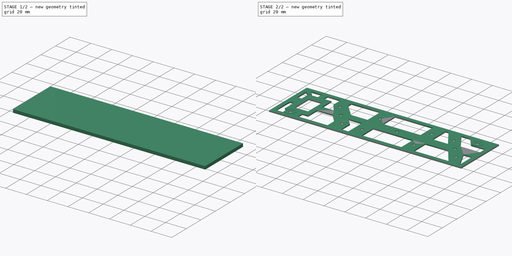
[diagram: build sequence overview — one tinted view per stage of 2, left to right]
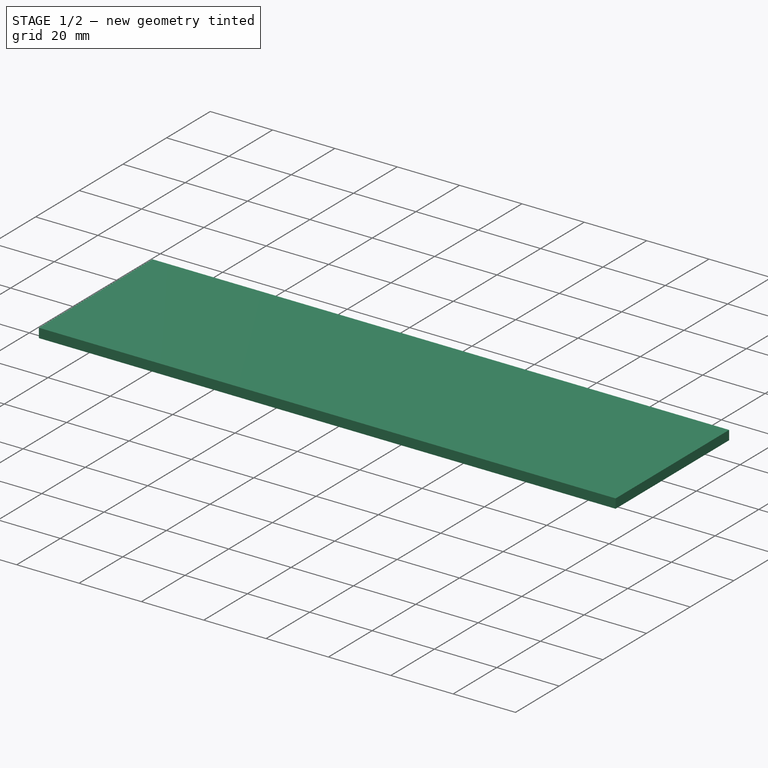
[diagram: stage 1 of 2 — iso view after this stage's code; geometry added in this stage tinted green]
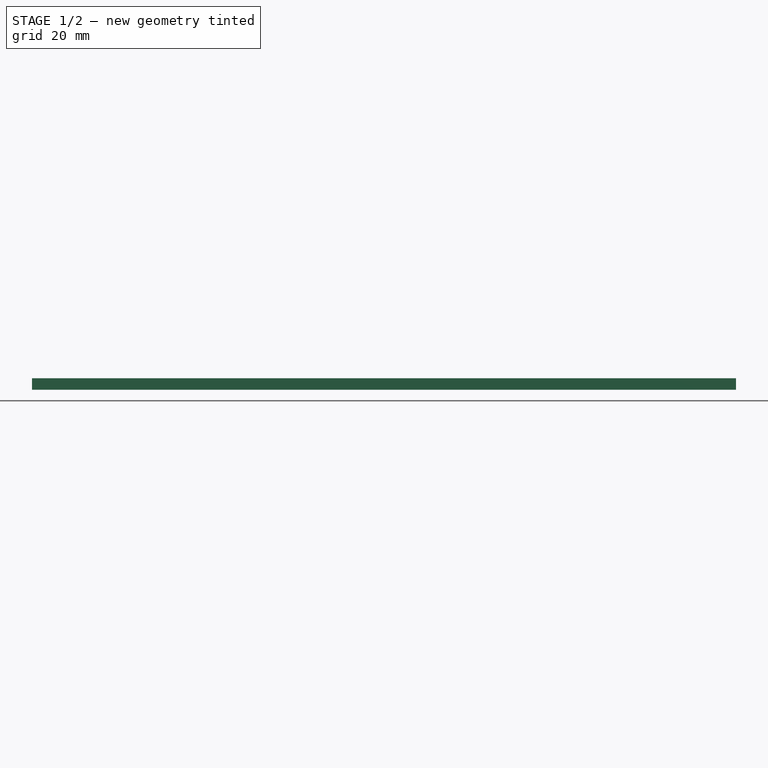
[diagram: stage 1 of 2 — front view after this stage's code; geometry added in this stage tinted green]
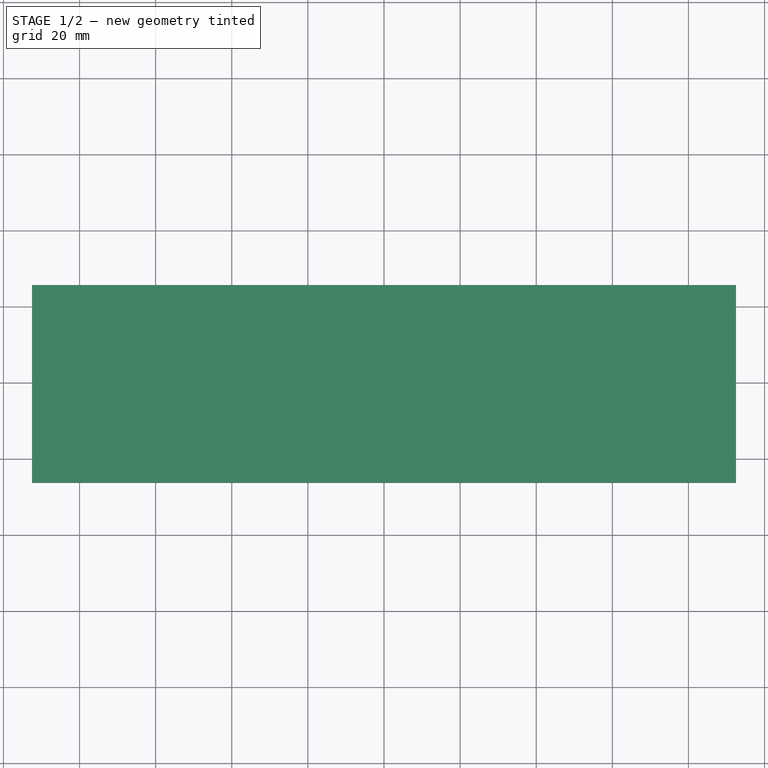
[diagram: stage 1 of 2 — top view after this stage's code; geometry added in this stage tinted green]
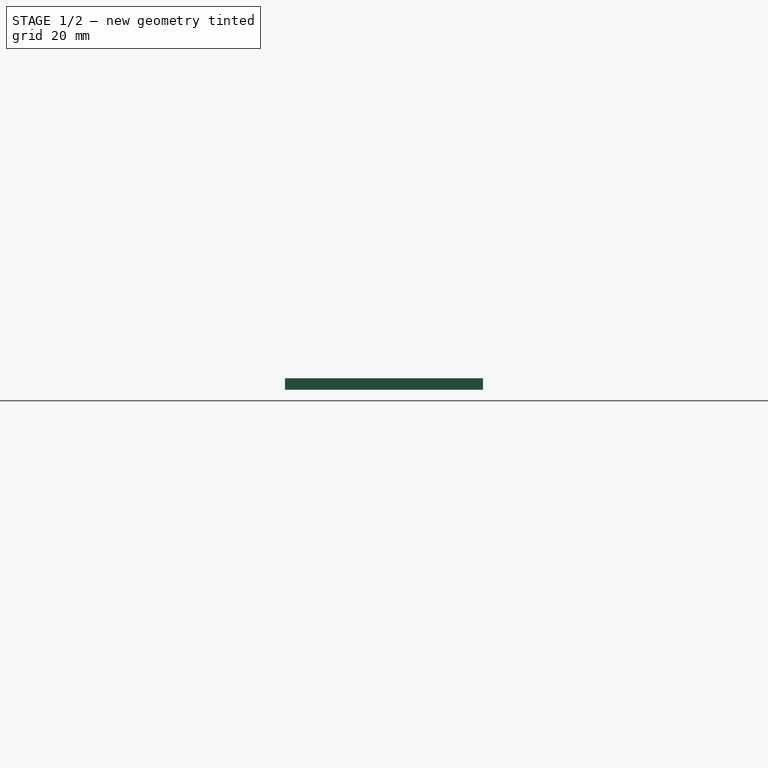
[diagram: stage 1 of 2 — right view after this stage's code; geometry added in this stage tinted green]
FCSTD DOCUMENT  (FreeCAD 0.20R29410 (Git))
Label: tools-case-front-back-panel
License: All rights reserved
LicenseURL: http://en.wikipedia.org/wiki/All_rights_reserved
objects: App::FeaturePython×6, Part::FeaturePython×2, PartDesign::SubShapeBinder×2, Sketcher::SketchObject×2, PartDesign::Pad×2, PartDesign::Body×1
note: 11 computed .brp shape members not serialized (recipe doc carries the construction recipe); baked Part::Feature solids carry a one-line shape summary decoded from their .brp

FEATURE [Part::FeaturePython] b_case_front_panel_001_  label="REF_front"  # a2plus imported part (geometry in sourceFile) (typed FeaturePython)
  Placement = pos=(0,-23.3,-5e-15) rot=(0.57735,0.57735,0.57735;4.18879rad)
  a2p_Version = V0.1
  fixedPosition = true
  objectType = a2pPart
  sourceFile = .\case-front-panel.FCStd
  subassemblyImport = false
  timeLastImport = 1.68112e+09
  updateColors = true
FEATURE [PartDesign::SubShapeBinder] Binder  label="bdFront"
  BindCopyOnChange = 0
  BindMode = 0
  ClaimChildren = false
  Context = -> Body [Binder.]
  Fuse = false
  MakeFace = true
  OffsetFill = false
  OffsetIntersection = false
  OffsetJoinType = 0
  OffsetOpenResult = false
  PartialLoad = false
  Relative = true
  Support = -> [b_case_front_panel_001_[Face4]]
  _Version = 2
FEATURE [Part::FeaturePython] b_case_back_panel_001_  label="REF_back"  # a2plus imported part (geometry in sourceFile) (typed FeaturePython)
  Placement = pos=(5.4849e-12,-0.3,7.77087e-06) rot=(0.57735,0.57735,0.57735;4.18879rad)
  a2p_Version = V0.1
  fixedPosition = false
  objectType = a2pPart
  sourceFile = .\case-back-panel.FCStd
  subassemblyImport = false
  timeLastImport = 1.68113e+09
  updateColors = true
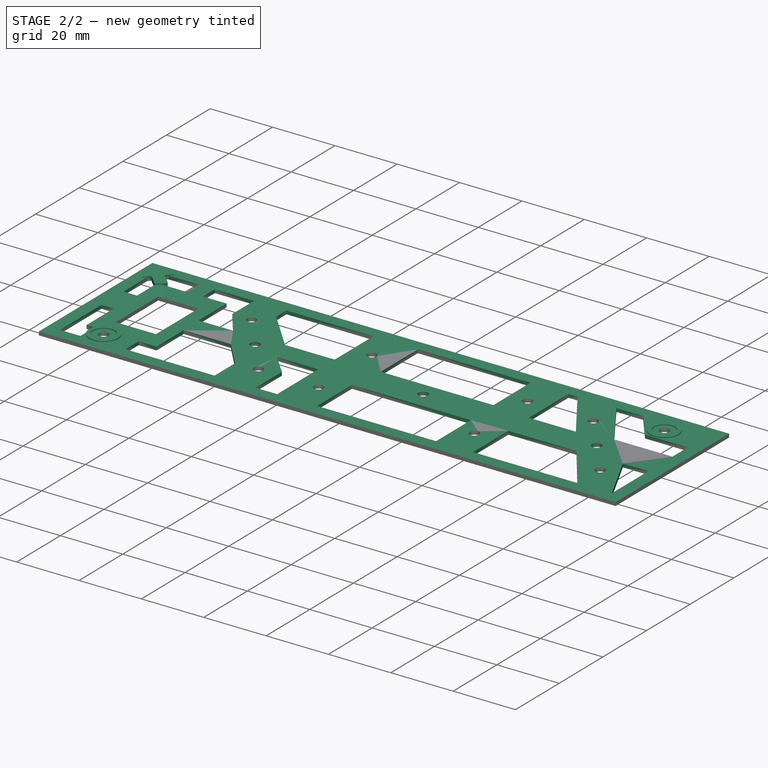
[diagram: stage 2 of 2 — iso view after this stage's code; geometry added in this stage tinted green]
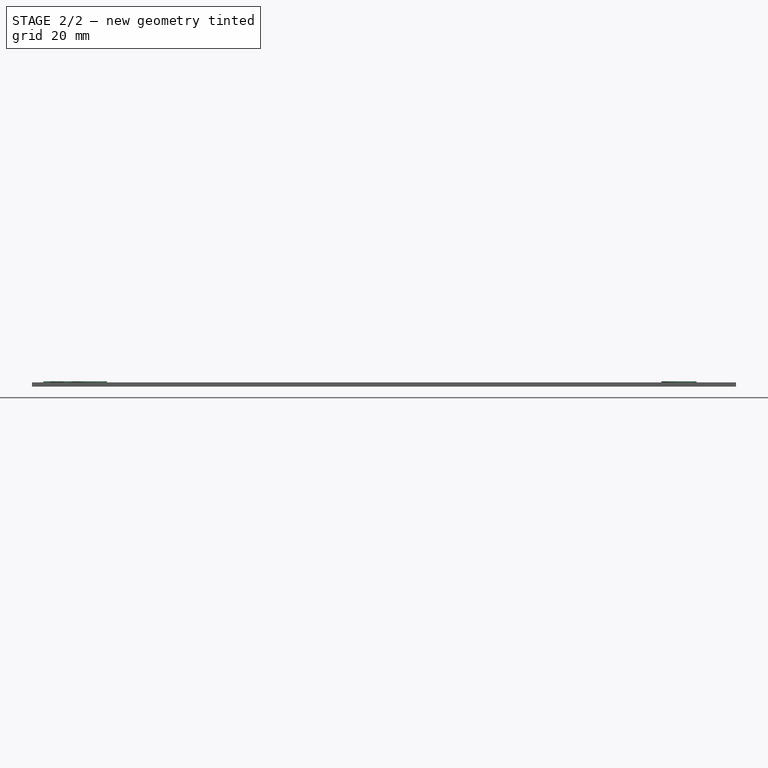
[diagram: stage 2 of 2 — front view after this stage's code; geometry added in this stage tinted green]
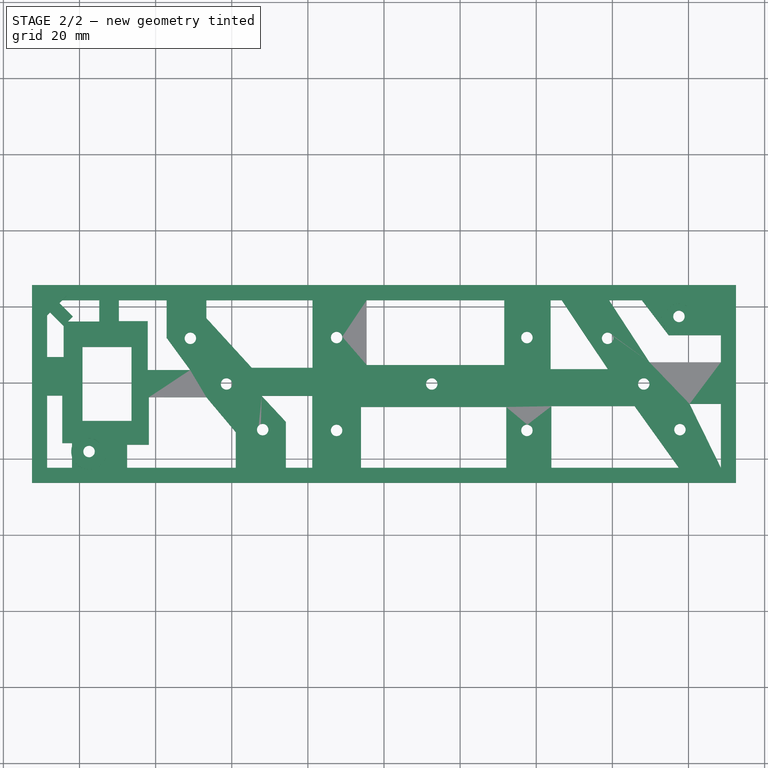
[diagram: stage 2 of 2 — top view after this stage's code; geometry added in this stage tinted green]
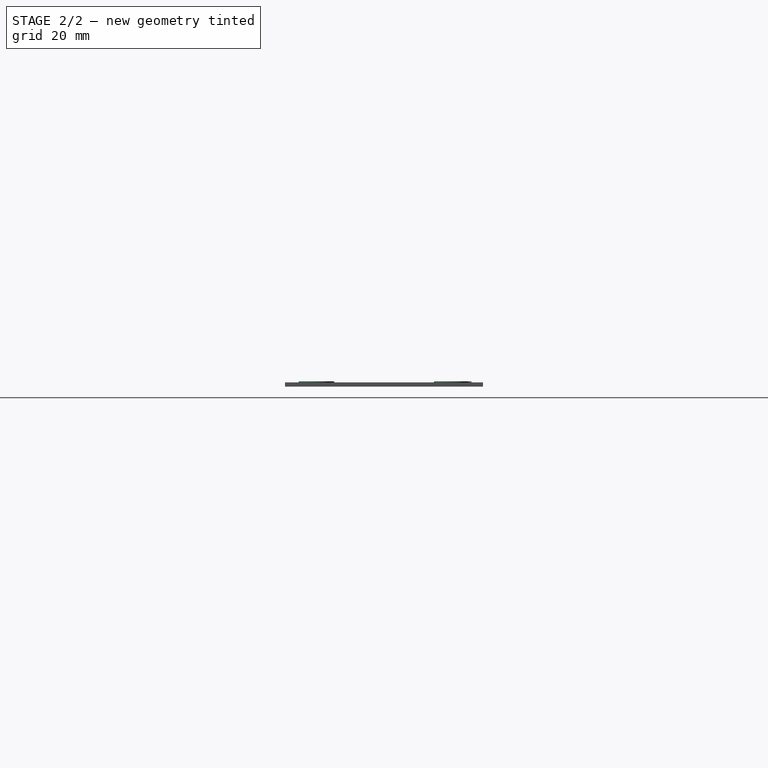
[diagram: stage 2 of 2 — right view after this stage's code; geometry added in this stage tinted green]
FEATURE [App::FeaturePython] planeCoincident_001  label="planeCoincident_001__REF_front"  # a2plus constraint (typed FeaturePython)
  Object1 = b_case_back_panel_001_
  Object2 = b_case_front_panel_001_
  ParentTreeObject = -> b_case_back_panel_001_
  SubElement1 = Face1
  SubElement2 = Face1
  Suppressed = false
  Type = plane
  directionConstraint = 0
  offset = 0
FEATURE [App::FeaturePython] planeCoincident_001_mirror  label="planeCoincident_001__REF_back"  # a2plus constraint (typed FeaturePython)
  Object1 = b_case_back_panel_001_
  Object2 = b_case_front_panel_001_
  ParentTreeObject = -> b_case_front_panel_001_
  SubElement1 = Face1
  SubElement2 = Face1
  Suppressed = false
  Type = plane
  directionConstraint = 0
  offset = 0
FEATURE [App::FeaturePython] planeCoincident_002  label="planeCoincident_002__REF_front"  # a2plus constraint (typed FeaturePython)
  Object1 = b_case_back_panel_001_
  Object2 = b_case_front_panel_001_
  ParentTreeObject = -> b_case_back_panel_001_
  SubElement1 = Face4
  SubElement2 = Face2
  Suppressed = false
  Type = plane
  directionConstraint = 0
  offset = 0
FEATURE [App::FeaturePython] planeCoincident_002_mirror  label="planeCoincident_002__REF_back"  # a2plus constraint (typed FeaturePython)
  Object1 = b_case_back_panel_001_
  Object2 = b_case_front_panel_001_
  ParentTreeObject = -> b_case_front_panel_001_
  SubElement1 = Face4
  SubElement2 = Face2
  Suppressed = false
  Type = plane
  directionConstraint = 0
  offset = 0
FEATURE [App::FeaturePython] planeCoincident_003  label="planeCoincident_003__REF_front"  # a2plus constraint (typed FeaturePython)
  Object1 = b_case_back_panel_001_
  Object2 = b_case_front_panel_001_
  ParentTreeObject = -> b_case_back_panel_001_
  SubElement1 = Face7
  SubElement2 = Face4
  Suppressed = false
  Type = plane
  directionConstraint = 0
  offset = 0
FEATURE [App::FeaturePython] planeCoincident_003_mirror  label="planeCoincident_003__REF_back"  # a2plus constraint (typed FeaturePython)
  Object1 = b_case_back_panel_001_
  Object2 = b_case_front_panel_001_
  ParentTreeObject = -> b_case_front_panel_001_
  SubElement1 = Face7
  SubElement2 = Face4
  Suppressed = false
  Type = plane
  directionConstraint = 0
  offset = 0
FEATURE [PartDesign::SubShapeBinder] Binder001  label="bdBack"
  BindCopyOnChange = 0
  BindMode = 0
  ClaimChildren = false
  Context = -> Body [Binder001.]
  Fuse = false
  MakeFace = true
  OffsetFill = false
  OffsetIntersection = false
  OffsetJoinType = 0
  OffsetOpenResult = false
  PartialLoad = false
  Relative = true
  Support = -> [b_case_back_panel_001_[Face7]]
  _Version = 2
FEATURE [Sketcher::SketchObject] Sketch  label="skBase"
  ExternalGeometry = -> [Binder,Binder001]
  FullyConstrained = false
  MapMode = 5
  Support = -> [XY_Plane]
  sketch-geometry (91):
    g0: LineSegment StartX=-92.5 StartY=25.7 StartZ=0 EndX=92.5 EndY=25.7 EndZ=0
    g1: LineSegment StartX=92.5 StartY=25.7 StartZ=0 EndX=92.5 EndY=-26.3 EndZ=0
    g2: LineSegment StartX=92.5 StartY=-26.3 StartZ=0 EndX=-92.5 EndY=-26.3 EndZ=0
    g3: LineSegment StartX=-92.5 StartY=-26.3 StartZ=0 EndX=-92.5 EndY=25.7 EndZ=0
    g4: LineSegment StartX=-88.5 StartY=21.7 StartZ=0 EndX=88.5 EndY=21.7 EndZ=0
    g5: LineSegment StartX=88.5 StartY=21.7 StartZ=0 EndX=88.5 EndY=-22.3 EndZ=0
    g6: LineSegment StartX=88.5 StartY=-22.3 StartZ=0 EndX=-88.5 EndY=-22.3 EndZ=0
    g7: LineSegment StartX=-88.5 StartY=-22.3 StartZ=0 EndX=-88.5 EndY=21.7 EndZ=0
    g8: Circle CenterX=-88.5 CenterY=21.7 CenterZ=0 NormalX=0 NormalY=0 NormalZ=1 AngleXU=0 Radius=4
    g9: Circle CenterX=88.5 CenterY=-22.3 CenterZ=0 NormalX=0 NormalY=0 NormalZ=1 AngleXU=0 Radius=4
    g10: LineSegment StartX=-79.2293 StartY=9.4 StartZ=0 EndX=-66.3293 EndY=9.4 EndZ=0
    g11: LineSegment StartX=-66.3293 StartY=9.4 StartZ=0 EndX=-66.3293 EndY=-10 EndZ=0
    g12: LineSegment StartX=-66.3293 StartY=-10 StartZ=0 EndX=-79.2293 EndY=-10 EndZ=0
    g13: LineSegment StartX=-79.2293 StartY=-10 StartZ=0 EndX=-79.2293 EndY=9.4 EndZ=0
    g14: LineSegment StartX=-0.303581 StartY=14.05 StartZ=0 EndX=25.3964 EndY=-14.65 EndZ=0
    g15: LineSegment StartX=25.3964 StartY=14.05 StartZ=0 EndX=-0.303581 EndY=-14.65 EndZ=0
    g16: GeomPoint X=12.5464 Y=-0.3 Z=0
    g17: Circle CenterX=-50.8752 CenterY=11.7 CenterZ=0 NormalX=0 NormalY=0 NormalZ=1 AngleXU=0 Radius=1.5
    g18: Circle CenterX=-41.3752 CenterY=-0.3 CenterZ=0 NormalX=0 NormalY=0 NormalZ=1 AngleXU=0 Radius=1.5
    g19: Circle CenterX=-31.8752 CenterY=-12.3 CenterZ=0 NormalX=0 NormalY=0 NormalZ=1 AngleXU=0 Radius=1.5
    g20: Circle CenterX=-12.4536 CenterY=11.9 CenterZ=0 NormalX=0 NormalY=0 NormalZ=1 AngleXU=0 Radius=1.5
    g21: Circle CenterX=-12.4536 CenterY=-12.5 CenterZ=0 NormalX=0 NormalY=0 NormalZ=1 AngleXU=0 Radius=1.5
    g22: Circle CenterX=12.5464 CenterY=-0.3 CenterZ=0 NormalX=0 NormalY=0 NormalZ=1 AngleXU=0 Radius=1.5
    g23: Circle CenterX=37.5464 CenterY=11.9 CenterZ=0 NormalX=0 NormalY=0 NormalZ=1 AngleXU=0 Radius=1.5
    g24: Circle CenterX=37.5464 CenterY=-12.5 CenterZ=0 NormalX=0 NormalY=0 NormalZ=1 AngleXU=0 Radius=1.5
    g25: Circle CenterX=77.7497 CenterY=-12.3 CenterZ=0 NormalX=0 NormalY=0 NormalZ=1 AngleXU=0 Radius=1.5
    g26: Circle CenterX=68.2497 CenterY=-0.3 CenterZ=0 NormalX=0 NormalY=0 NormalZ=1 AngleXU=0 Radius=1.5
    g27: Circle CenterX=58.7497 CenterY=11.7 CenterZ=0 NormalX=0 NormalY=0 NormalZ=1 AngleXU=0 Radius=1.5
    g28: LineSegment StartX=-88.5 StartY=21.7 StartZ=0 EndX=-88.5 EndY=6.77307 EndZ=0
    g29: LineSegment StartX=-88.5 StartY=6.77307 StartZ=0 EndX=-84.1723 EndY=6.77307 EndZ=0
    g30: LineSegment StartX=-84.1723 StartY=6.77307 StartZ=0 EndX=-84.1723 EndY=16.1183 EndZ=0
    g31: LineSegment StartX=-62.0706 StartY=16.2291 StartZ=0 EndX=-62.0706 EndY=3.37155 EndZ=0
    g32: LineSegment StartX=-62.0706 StartY=3.37155 StartZ=0 EndX=-50.9312 EndY=3.37155 EndZ=0
    g33: LineSegment StartX=-50.9312 StartY=3.37155 StartZ=0 EndX=-57.1046 EndY=11.8147 EndZ=0
    g34: LineSegment StartX=-57.1046 StartY=11.8147 StartZ=0 EndX=-57.1046 EndY=21.7 EndZ=0
    g35: LineSegment StartX=-88.5 StartY=-22.3 StartZ=0 EndX=-88.5 EndY=-3.36019 EndZ=0
    g36: LineSegment StartX=-88.5 StartY=-3.36019 StartZ=0 EndX=-84.5422 EndY=-3.36019 EndZ=0
    g37: LineSegment StartX=-84.5422 StartY=-3.36019 StartZ=0 EndX=-84.5422 EndY=-15.8436 EndZ=0
    g38: LineSegment StartX=-84.1723 StartY=16.1183 StartZ=0 EndX=-74.8017 EndY=16.1183 EndZ=0
    g39: LineSegment StartX=-74.8017 StartY=16.1183 StartZ=0 EndX=-74.8017 EndY=21.7 EndZ=0
    g40: LineSegment StartX=-74.8017 StartY=21.7 StartZ=0 EndX=-88.5 EndY=21.7 EndZ=0
    g41: LineSegment StartX=-62.0706 StartY=16.2291 StartZ=0 EndX=-69.6551 EndY=16.2291 EndZ=0
    g42: LineSegment StartX=-69.6551 StartY=16.2291 StartZ=0 EndX=-69.6551 EndY=21.7 EndZ=0
    g43: LineSegment StartX=-69.6551 StartY=21.7 StartZ=0 EndX=-57.1046 EndY=21.7 EndZ=0
    g44: LineSegment StartX=-84.5422 StartY=-15.8436 StartZ=0 EndX=-81.9728 EndY=-15.8436 EndZ=0
    g45: LineSegment StartX=-81.9728 StartY=-15.8436 StartZ=0 EndX=-81.9728 EndY=-22.3 EndZ=0
    g46: LineSegment StartX=-81.9728 StartY=-22.3 StartZ=0 EndX=-88.5 EndY=-22.3 EndZ=0
    g47: LineSegment StartX=-67.4881 StartY=-22.3 StartZ=0 EndX=-67.4881 EndY=-16.2758 EndZ=0
    g48: LineSegment StartX=-67.4881 StartY=-16.2758 StartZ=0 EndX=-61.7752 EndY=-16.2758 EndZ=0
    g49: LineSegment StartX=-61.7752 StartY=-16.2758 StartZ=0 EndX=-61.7752 EndY=-3.80058 EndZ=0
    g50: LineSegment StartX=-61.7752 StartY=-3.80058 StartZ=0 EndX=-46.6642 EndY=-3.80058 EndZ=0
    g51: LineSegment StartX=-46.6642 StartY=-3.80058 StartZ=0 EndX=-38.9473 EndY=-12.97 EndZ=0
    g52: LineSegment StartX=-38.9473 StartY=-12.97 StartZ=0 EndX=-38.9473 EndY=-22.3 EndZ=0
    g53: LineSegment StartX=-25.7833 StartY=-22.3 StartZ=0 EndX=-25.7833 EndY=-10.2464 EndZ=0
    g54: LineSegment StartX=-25.7833 StartY=-10.2464 StartZ=0 EndX=-32.1384 EndY=-3.43743 EndZ=0
    g55: LineSegment StartX=-32.1384 StartY=-3.43743 StartZ=0 EndX=-18.8612 EndY=-3.43743 EndZ=0
    g56: LineSegment StartX=-18.8612 StartY=-3.43743 StartZ=0 EndX=-18.8612 EndY=-22.3 EndZ=0
    g57: LineSegment StartX=-67.4881 StartY=-22.3 StartZ=0 EndX=-38.9473 EndY=-22.3 EndZ=0
    g58: LineSegment StartX=-25.7833 StartY=-22.3 StartZ=0 EndX=-18.8612 EndY=-22.3 EndZ=0
    g59: LineSegment StartX=-46.6642 StartY=21.7 StartZ=0 EndX=-46.6642 EndY=16.9895 EndZ=0
    g60: LineSegment StartX=-46.6642 StartY=16.9895 StartZ=0 EndX=-34.7387 EndY=3.95795 EndZ=0
    g61: LineSegment StartX=-34.7387 StartY=3.95795 StartZ=0 EndX=-18.7897 EndY=3.95795 EndZ=0
    g62: LineSegment StartX=-18.7897 StartY=3.95795 StartZ=0 EndX=-18.7897 EndY=21.7 EndZ=0
    g63: LineSegment StartX=-18.7897 StartY=21.7 StartZ=0 EndX=-46.6642 EndY=21.7 EndZ=0
    g64: LineSegment StartX=-4.55203 StartY=21.7 StartZ=0 EndX=31.5971 EndY=21.7 EndZ=0
    g65: LineSegment StartX=31.5971 StartY=21.7 StartZ=0 EndX=31.5971 EndY=4.69446 EndZ=0
    g66: LineSegment StartX=31.5971 StartY=4.69446 StartZ=0 EndX=-4.55203 EndY=4.69446 EndZ=0
    g67: LineSegment StartX=-4.55203 StartY=4.69446 StartZ=0 EndX=-4.55203 EndY=21.7 EndZ=0
    g68: LineSegment StartX=-6.03984 StartY=-22.3 StartZ=0 EndX=32.1137 EndY=-22.3 EndZ=0
    g69: LineSegment StartX=32.1137 StartY=-22.3 StartZ=0 EndX=32.1137 EndY=-6.34795 EndZ=0
    g70: LineSegment StartX=32.1137 StartY=-6.34795 StartZ=0 EndX=-6.03984 EndY=-6.34795 EndZ=0
    g71: LineSegment StartX=-6.03984 StartY=-6.34795 StartZ=0 EndX=-6.03984 EndY=-22.3 EndZ=0
    g72: LineSegment StartX=43.7642 StartY=21.7 StartZ=0 EndX=43.7642 EndY=3.6062 EndZ=0
    g73: LineSegment StartX=43.7642 StartY=3.6062 StartZ=0 EndX=58.7934 EndY=3.6062 EndZ=0
    g74: LineSegment StartX=58.7934 StartY=3.6062 StartZ=0 EndX=46.6777 EndY=21.7 EndZ=0
    g75: LineSegment StartX=46.6777 StartY=21.7 StartZ=0 EndX=43.7642 EndY=21.7 EndZ=0
    g76: LineSegment StartX=43.9872 StartY=-22.3 StartZ=0 EndX=43.9872 EndY=-6.13344 EndZ=0
    g77: LineSegment StartX=43.9872 StartY=-6.13344 StartZ=0 EndX=65.8401 EndY=-6.13344 EndZ=0
    g78: LineSegment StartX=65.8401 StartY=-6.13344 StartZ=0 EndX=77.4356 EndY=-22.3 EndZ=0
    g79: LineSegment StartX=77.4356 StartY=-22.3 StartZ=0 EndX=43.9872 EndY=-22.3 EndZ=0
    g80: LineSegment StartX=59.1405 StartY=21.7 StartZ=0 EndX=69.7528 EndY=5.42179 EndZ=0
    g81: LineSegment StartX=69.7528 StartY=5.42179 StartZ=0 EndX=88.5 EndY=5.42179 EndZ=0
    g82: LineSegment StartX=88.5 StartY=-5.54605 StartZ=0 EndX=80.2853 EndY=-5.54605 EndZ=0
    g83: LineSegment StartX=80.2853 StartY=-5.54605 StartZ=0 EndX=88.5 EndY=-22.3 EndZ=0
    g84: LineSegment StartX=88.5 StartY=-22.3 StartZ=0 EndX=88.5 EndY=-5.54605 EndZ=0
    g85: Circle CenterX=77.5 CenterY=17.45 CenterZ=0 NormalX=0 NormalY=0 NormalZ=1 AngleXU=0 Radius=1.5
    g86: Circle CenterX=-77.5 CenterY=-18.05 CenterZ=0 NormalX=0 NormalY=0 NormalZ=1 AngleXU=0 Radius=1.5
    g87: LineSegment StartX=88.5 StartY=12.504 StartZ=0 EndX=74.7862 EndY=12.504 EndZ=0
    g88: LineSegment StartX=74.7862 StartY=12.504 StartZ=0 EndX=67.7431 EndY=21.7 EndZ=0
    g89: LineSegment StartX=67.7431 StartY=21.7 StartZ=0 EndX=59.1405 EndY=21.7 EndZ=0
    g90: LineSegment StartX=88.5 StartY=5.42179 StartZ=0 EndX=88.5 EndY=12.504 EndZ=0
  constraints (185):
    c: Coincident(g0,g1)
    c: Coincident(g1,g2)
    c: Coincident(g2,g3)
    c: Coincident(g3,g0)
    c: Horizontal(g0)
    c: Horizontal(g2)
    c: Vertical(g1)
    c: Vertical(g3)
    c: Coincident(g4,g5)
    c: Coincident(g5,g6)
    c: Coincident(g6,g7)
    c: Coincident(g7,g4)
    c: Horizontal(g4)
    c: Horizontal(g6)
    c: Vertical(g5)
    c: Vertical(g7)
    c: Coincident(g8,g4)
    c: Coincident(g9,g5)
    c: Tangent(g9,g1)
    c: Tangent(g9,g2)
    c: Tangent(g8,g0)
    c: Tangent(g8,g3)
    c: Equal(g8,g9)
    c: Radius(g8) = 4
    c: Coincident(g10,g11)
    c: Coincident(g11,g12)
    c: Coincident(g12,g13)
    c: Coincident(g13,g10)
    c: Horizontal(g10)
    c: Horizontal(g12)
    c: Vertical(g11)
    c: Vertical(g13)
    c: PointOnObject(g16,g14)
    c: PointOnObject(g16,g15)
    c: Coincident(g22,g16)
    c: Equal(g17, g18-g27) x10
    c: Diameter(g17) = 3
    c: Coincident(g4,g28)
    c: PointOnObject(g28,g7)
    c: Coincident(g28,g29)
    c: Horizontal(g29)
    c: Coincident(g29,g30)
    c: Vertical(g30)
    c: Vertical(g31)
    c: Coincident(g31,g32)
    c: Horizontal(g32)
    c: Coincident(g32,g33)
    c: Coincident(g33,g34)
    c: PointOnObject(g34,g4)
    c: Vertical(g34)
    c: Coincident(g6,g35)
    c: PointOnObject(g35,g7)
    c: Coincident(g35,g36)
    c: Horizontal(g36)
    c: Coincident(g36,g37)
    c: Vertical(g37)
    c: Coincident(g30,g38)
    c: Horizontal(g38)
    c: Coincident(g38,g39)
    c: PointOnObject(g39,g4)
    c: Coincident(g39,g40)
    c: Coincident(g40,g28)
    c: Vertical(g39)
    c: Coincident(g31,g41)
    c: Coincident(g41,g42)
    c: PointOnObject(g42,g4)
    c: Vertical(g42)
    c: Coincident(g42,g43)
    c: Coincident(g43,g34)
    c: Coincident(g37,g44)
    c: Horizontal(g44)
    c: Coincident(g44,g45)
    c: PointOnObject(g45,g6)
    c: Vertical(g45)
    c: Coincident(g45,g46)
    c: Coincident(g46,g35)
    c: PointOnObject(g47,g6)
    c: Vertical(g47)
    c: Coincident(g47,g48)
    c: Horizontal(g48)
    c: Coincident(g48,g49)
    c: Vertical(g49)
    c: Coincident(g49,g50)
    c: Coincident(g50,g51)
    c: Coincident(g51,g52)
    c: PointOnObject(g52,g6)
    c: Vertical(g52)
    c: PointOnObject(g53,g6)
    c: Vertical(g53)
    c: Coincident(g53,g54)
    c: Coincident(g54,g55)
    c: Horizontal(g55)
    c: Coincident(g55,g56)
    c: PointOnObject(g56,g6)
    c: Vertical(g56)
    c: Horizontal(g41)
    c: Coincident(g57,g47)
    c: Coincident(g57,g52)
    c: Coincident(g58,g53)
    c: Coincident(g58,g56)
    c: PointOnObject(g59,g4)
    c: Coincident(g59,g60)
    c: Coincident(g60,g61)
    c: Horizontal(g61)
    c: Coincident(g61,g62)
    c: PointOnObject(g62,g4)
    c: Coincident(g62,g63)
    c: Coincident(g63,g59)
    c: Vertical(g59)
    c: Vertical(g62)
    c: Horizontal(g50)
    c: Coincident(g64,g65)
    c: Coincident(g65,g66)
    c: Coincident(g66,g67)
    c: Coincident(g67,g64)
    c: Horizontal(g64)
    c: Horizontal(g66)
    c: Vertical(g65)
    c: Vertical(g67)
    c: PointOnObject(g64,g4)
    c: Coincident(g68,g69)
    c: Coincident(g69,g70)
    c: Coincident(g70,g71)
    c: Coincident(g71,g68)
    c: Horizontal(g68)
    c: Horizontal(g70)
    c: Vertical(g69)
    c: Vertical(g71)
    c: PointOnObject(g68,g6)
    c: Coincident(g0,g-3)
    c: Coincident(g1,g-4)
    c: Coincident(g25,g-7)
    c: Coincident(g26,g-5)
    c: Coincident(g27,g-6)
    c: Coincident(g23,g-9)
    c: Coincident(g24,g-8)
    c: Coincident(g15,g-10)
    c: Coincident(g14,g-10)
    c: Coincident(g15,g-11)
    c: Coincident(g14,g-11)
    c: Coincident(g20,g-12)
    c: Coincident(g21,g-13)
    c: Coincident(g19,g-14)
    c: Coincident(g18,g-15)
    c: Coincident(g17,g-16)
    c: Coincident(g10,g-17)
    c: Coincident(g12,g-18)
    c: PointOnObject(g72,g4)
    c: Vertical(g72)
    c: Coincident(g72,g73)
    c: Horizontal(g73)
    c: Coincident(g73,g74)
    c: PointOnObject(g74,g4)
    c: Coincident(g74,g75)
    c: Coincident(g75,g72)
    c: PointOnObject(g76,g6)
    c: Vertical(g76)
    c: Coincident(g76,g77)
    c: Horizontal(g77)
    c: Coincident(g77,g78)
    c: PointOnObject(g78,g6)
    c: Coincident(g78,g79)
    c: Coincident(g79,g76)
    c: PointOnObject(g80,g4)
    c: Coincident(g80,g81)
    c: PointOnObject(g81,g5)
    c: Horizontal(g81)
    c: PointOnObject(g82,g5)
    c: Horizontal(g82)
    c: Coincident(g82,g83)
    c: Coincident(g83,g5)
    c: Coincident(g83,g84)
    c: Coincident(g84,g82)
    c: Coincident(g85,g-19)
    c: Coincident(g86,g-20)
    c: Equal(g86,g85)
    c: Equal(g85,g27)
    c: Horizontal(g87)
    c: Coincident(g87,g88)
    c: PointOnObject(g88,g4)
    c: Coincident(g88,g89)
    c: Coincident(g89,g80)
    c: Coincident(g90,g81)
    c: Coincident(g90,g87)
    c: Vertical(g90)
FEATURE [Sketcher::SketchObject] Sketch001  label="skArrow"
  ExternalGeometry = -> [Binder001]
  FullyConstrained = false
  MapMode = 5
  Support = -> [XY_Plane]
  sketch-geometry (13):
    g0: LineSegment StartX=-89.5 StartY=22.7 StartZ=0 EndX=-83.5 EndY=22.7 EndZ=0
    g1: LineSegment StartX=-83.5 StartY=22.7 StartZ=0 EndX=-85.2678 EndY=20.9322 EndZ=0
    g2: LineSegment StartX=-85.2678 StartY=20.9322 StartZ=0 EndX=-81.7322 EndY=17.3967 EndZ=0
    g3: LineSegment StartX=-81.7322 StartY=17.3967 StartZ=0 EndX=-84.1967 EndY=14.9322 EndZ=0
    g4: LineSegment StartX=-84.1967 StartY=14.9322 StartZ=0 EndX=-87.7322 EndY=18.4678 EndZ=0
    g5: LineSegment StartX=-87.7322 StartY=18.4678 StartZ=0 EndX=-89.5 EndY=16.7 EndZ=0
    g6: LineSegment StartX=-89.5 StartY=16.7 StartZ=0 EndX=-89.5 EndY=22.7 EndZ=0
    g7: LineSegment StartX=-89.5 StartY=16.7 StartZ=0 EndX=-83.5 EndY=22.7 EndZ=0
    g8: Circle CenterX=-89.5 CenterY=22.7 CenterZ=0 NormalX=0 NormalY=0 NormalZ=1 AngleXU=0 Radius=3
    g9: Circle CenterX=77.5 CenterY=17.45 CenterZ=0 NormalX=0 NormalY=0 NormalZ=1 AngleXU=0 Radius=3.37831
    g10: Circle CenterX=77.5 CenterY=17.45 CenterZ=0 NormalX=0 NormalY=0 NormalZ=1 AngleXU=0 Radius=4.61281
    g11: Circle CenterX=-77.5 CenterY=-18.05 CenterZ=0 NormalX=0 NormalY=0 NormalZ=1 AngleXU=0 Radius=3.50367
    g12: Circle CenterX=-77.5 CenterY=-18.05 CenterZ=0 NormalX=0 NormalY=0 NormalZ=1 AngleXU=0 Radius=4.67467
  constraints (27):
    c: Horizontal(g0)
    c: Coincident(g0,g1)
    c: Coincident(g1,g2)
    c: Coincident(g2,g3)
    c: Coincident(g3,g4)
    c: Coincident(g4,g5)
    c: Coincident(g5,g6)
    c: Vertical(g6)
    c: Coincident(g0,g6)
    c: Coincident(g7,g5)
    c: Coincident(g7,g0)
    c: PointOnObject(g1,g7)
    c: PointOnObject(g4,g7)
    c: Perpendicular(g3,g2)
    c: Perpendicular(g3,g4)
    c: Perpendicular(g4,g5)
    c: Equal(g1,g5)
    c: Angle(g0,g1) = 0.785398
    c: Distance(g1) = 2.5
    c: Distance(g0) = 6
    c: Distance(g4) = 5
    c: Coincident(g8,g0)
    c: Radius(g8) = 3
    c: Coincident(g9,g-3)
    c: Coincident(g10,g9)
    c: Coincident(g11,g-4)
    c: Coincident(g12,g11)
FEATURE [PartDesign::Pad] Pad  label="pdBase"
  Direction = (0,0,1)
  Length = 1.12
  Length2 = 10
  Profile = -> Sketch
  ReferenceAxis = -> Sketch [N_Axis]
  Type = 0
FEATURE [PartDesign::Pad] Pad001  label="pdArrow"
  BaseFeature = -> Pad
  Direction = (0,0,1)
  Length = 1.4
  Length2 = 10
  Profile = -> Sketch001
  ReferenceAxis = -> Sketch001 [N_Axis]
  Refine = true
  Type = 0
FEATURE [PartDesign::Body] Body
  Group = -> [Binder,Binder001,Sketch,Pad,Sketch001,Pad001]
  Origin = -> Origin
  Tip = -> Pad001
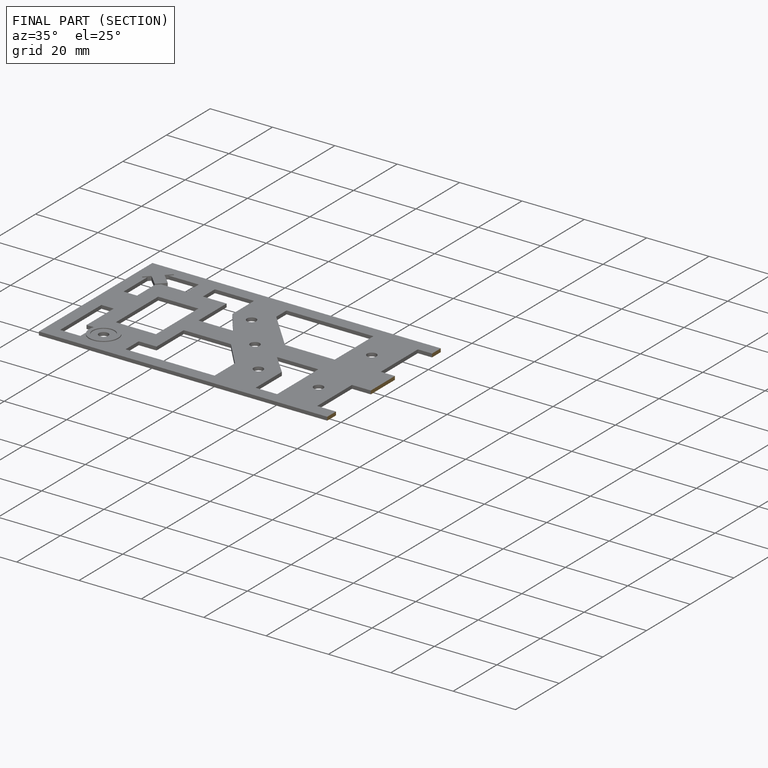
[diagram: finished part — half-section view (interior)]
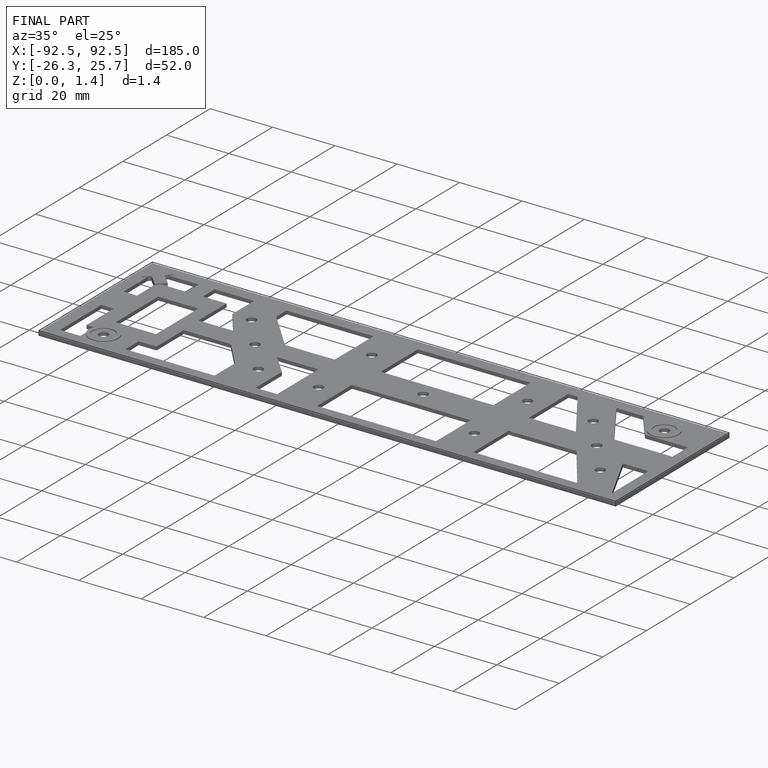
[diagram: finished part — iso view with bounding-box wireframe]
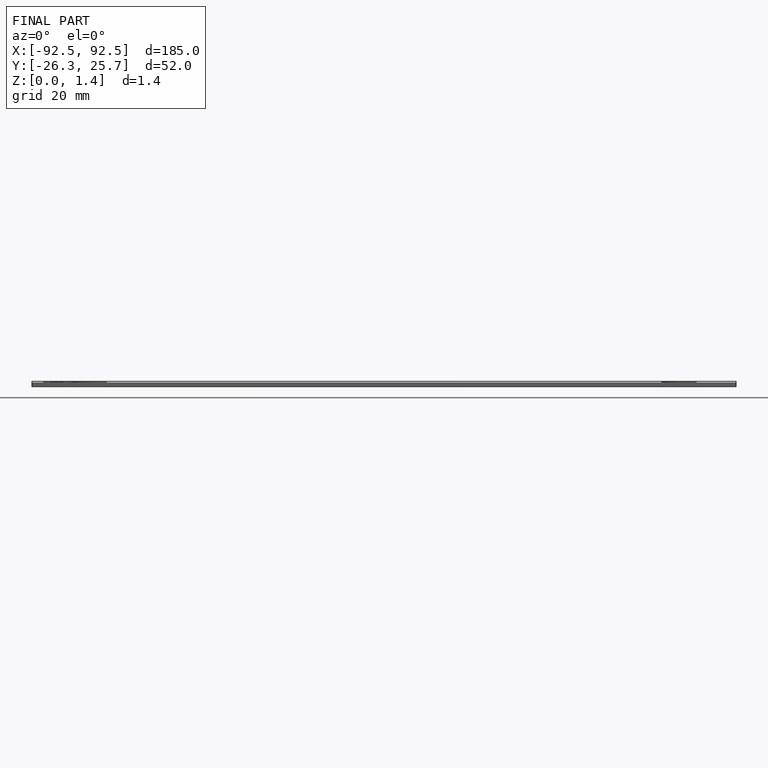
[diagram: finished part — front view with bounding-box wireframe]
